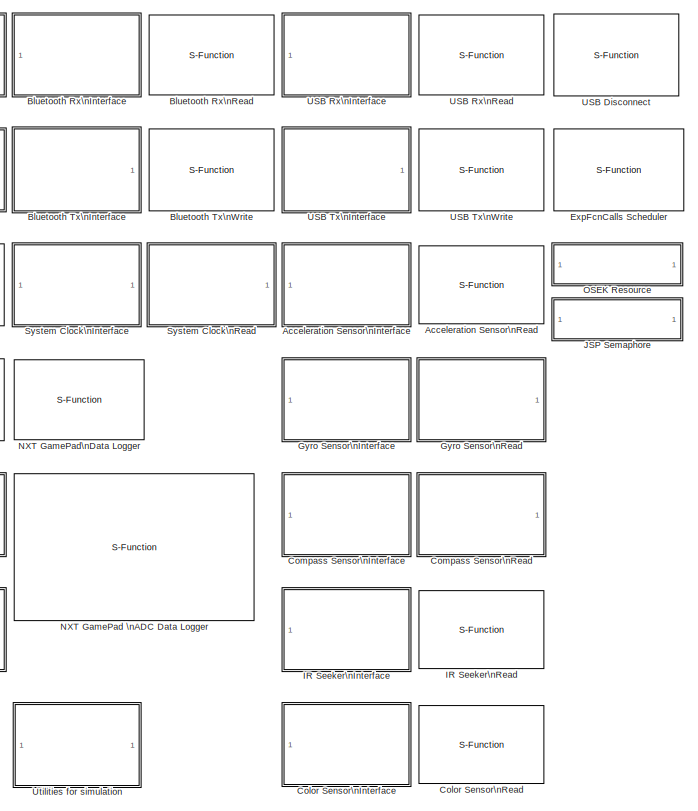
[diagram: root canvas - part 1/2, right side, full height]
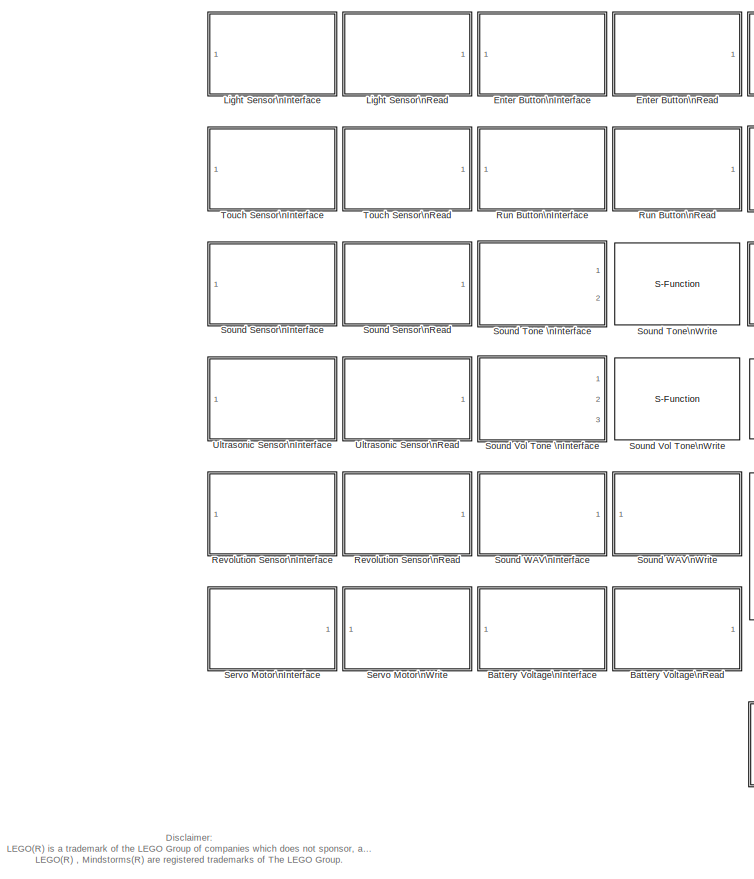
[diagram: root canvas - part 2/2, left side, full height]
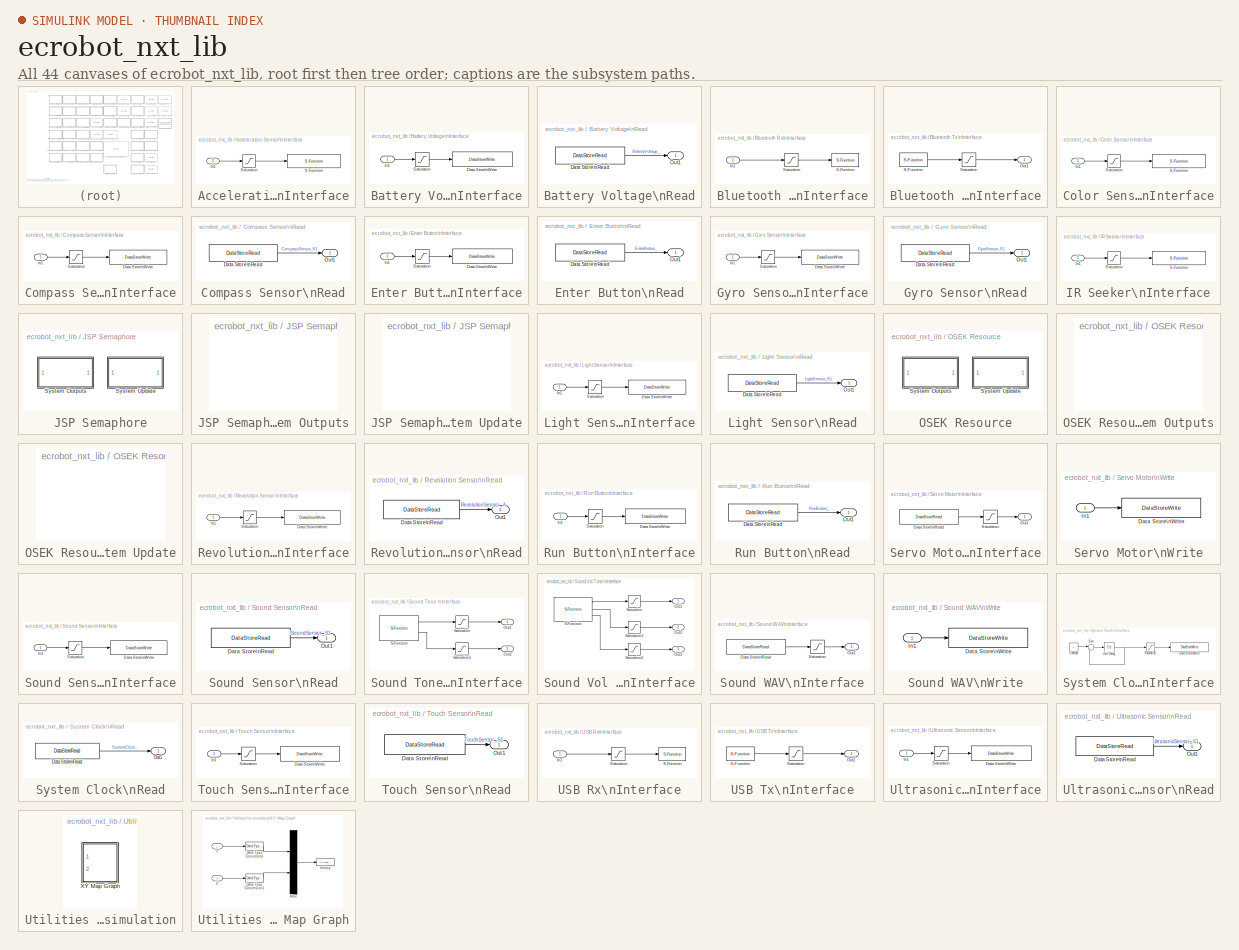
[diagram: thumbnail index - all 44 canvases of the model, root first then tree order]
MODEL ecrobot_nxt_lib
KIND library
BLOCK [SubSystem] Acceleration Sensor\nInterface
  FunctionWithSeparateData = off
  MaskDescription = HiTechnic Acceleration Sensor Interface for LEGO Mindstorms NXT. \nInput is a vectorized signal:\n Index1: X axis acceleration\n Index2: Y axis acceleration\n Index3: Z axis acceleration\nThis block should be allocated outside of a Subsystem for RTW code generation.
  MaskDisplay = image(imread('HiTechnicSensor.jpg'))\nport_label('input', 1, ['S' num2str(ip)])
  MaskEnableString = on
  MaskHideContents = off
  MaskIconFrame = on
  MaskIconOpaque = on
  MaskIconRotate = none
  MaskIconUnits = pixels
  MaskPromptString = Port:
  MaskSelfModifiable = on
  MaskStyleString = popup(S1|S2|S3|S4)
  MaskToolTipString = on
  MaskTunableValueString = on
  MaskType = Acceleration Sensor Interface
  MaskValueString = S1
  MaskVariables = ip=@1;
  MaskVisibilityString = on
  MinAlgLoopOccurrences = off
  Ports = [1]
  RTWSystemCode = Auto
  StopFcn = clearNXTSignalObjects();
  TreatAsAtomicUnit = on
BLOCK [Inport] Acceleration Sensor\nInterface/In1
  IconDisplay = Port number
BLOCK [S-Function] Acceleration Sensor\nInterface/S-Function
  FunctionName = sfun_acceleration_sensor
  MaskIconFrame = on
  MaskIconOpaque = on
  MaskIconRotate = none
  MaskIconUnits = autoscale
  MaskInitialization = bd_mode = InitDeviceSFunBlock(bdroot);
  Parameters = 0.001,0,ip,bd_mode
  Ports = [1]
BLOCK [Saturate] Acceleration Sensor\nInterface/Saturation
  LowerLimit = -512
  UpperLimit = 511
BLOCK [S-Function] Acceleration Sensor\nRead
  FunctionName = sfun_acceleration_sensor
  MaskDescription = Read HiTechnic Acceleration Sensor data.\nOutput is a vectorized signal:\n Index1: X axis acceleration\n Index2: Y axis acceleration\n Index3: Z axis acceleration
  MaskDisplay = image(imread('HiTechnicSensor.jpg'))\nport_label('output', 1, ['S' num2str(ip)])
  MaskEnableString = on
  MaskIconFrame = on
  MaskIconOpaque = on
  MaskIconRotate = none
  MaskIconUnits = autoscale
  MaskInitialization = bd_mode = InitDeviceSFunBlock(bdroot);
  MaskPromptString = Port:
  MaskStyleString = popup(S1|S2|S3|S4)
  MaskToolTipString = on
  MaskTunableValueString = on
  MaskType = Acceleration Sensor Read
  MaskValueString = S1
  MaskVariables = ip=@1;
  MaskVisibilityString = on
  Parameters = -1,1,ip,bd_mode
  Ports = [0, 1]
BLOCK [SubSystem] Battery Voltage\nInterface
  FunctionWithSeparateData = off
  InitFcn = InitInterfaceBlock(bdroot, gcb, 'BatteryVoltage', 'Write', '');
  MaskDescription = Battery Voltage Interface for LEGO Mindstorms NXT.\nThis block should be allocated outside of a Subsystem for RTW code generation.
  MaskDisplay = image(pic)\n
  MaskHideContents = off
  MaskIconFrame = on
  MaskIconOpaque = on
  MaskIconRotate = port
  MaskIconUnits = pixels
  MaskInitialization = [data, map]=imread('BATTERY_VOLTAGE.gif');\npic=ind2rgb(data,map);\n
  MaskSelfModifiable = on
  MaskType = Battery Voltage Interface
  MinAlgLoopOccurrences = off
  Ports = [1]
  RTWSystemCode = Auto
  StopFcn = clearNXTSignalObjects();
  TreatAsAtomicUnit = on
BLOCK [DataStoreWrite] Battery Voltage\nInterface/Data Store\nWrite
  DataStoreName = BatteryVoltage
  SampleTime = 0.001
BLOCK [Inport] Battery Voltage\nInterface/In1
  IconDisplay = Port number
BLOCK [Saturate] Battery Voltage\nInterface/Saturation
  LowerLimit = BatteryVoltage.Min
  SampleTime = 0.001
  UpperLimit = BatteryVoltage.Max
BLOCK [SubSystem] Battery Voltage\nRead
  FunctionWithSeparateData = off
  InitFcn = InitAccessorBlock(bdroot, gcb, 'BatteryVoltage', 'Read', '');
  MaskDescription = Read LEGO Mindstorms NXT Battery Voltage data.\n
  MaskDisplay = image(pic)\n
  MaskHideContents = off
  MaskIconFrame = on
  MaskIconOpaque = on
  MaskIconRotate = port
  MaskIconUnits = pixels
  MaskInitialization = [data, map]=imread('BATTERY_VOLTAGE.gif');\npic=ind2rgb(data,map);\n\nL = get_param([gcb '/Data Store Read'], 'LineHandles');\nname = get_param(L.Outport, 'Name');\nset_param(L.Outport, 'Name', 'BatteryVoltage_');\n
  MaskSelfModifiable = on
  MaskType = Battery Voltage Read
  MinAlgLoopOccurrences = off
  Ports = [0, 1]
  RTWSystemCode = Auto
BLOCK [DataStoreRead] Battery Voltage\nRead/Data Store\nRead
  DataStoreName = BatteryVoltage
  SampleTime = -1
BLOCK [Outport] Battery Voltage\nRead/Out1
  BusOutputAsStruct = off
  IconDisplay = Port number
BLOCK [SubSystem] Bluetooth Rx\nInterface
  AncestorBlock = ecrobot_nxt_lib/Bluetooth Rx\nInterface
  FunctionWithSeparateData = off
  MaskDescription = Bluetooth Receive Data Packet Interface for LEGO Mindstorms NXT.\nSize of Receive Data Packet is 32 and data type is uint8.\nThis block should be allocated outside of a Subsystem for RTW code generation and\nshould be used only single instance in a model.
  MaskDisplay = image(imread('BLUETOOTH.jpg'))\nport_label('input', 1, 'BTRx')
  MaskHideContents = off
  MaskIconFrame = on
  MaskIconOpaque = on
  MaskIconRotate = none
  MaskIconUnits = autoscale
  MaskType = Bluetooth Rx Interface
  MinAlgLoopOccurrences = off
  Ports = [1]
  RTWSystemCode = Auto
  TreatAsAtomicUnit = on
BLOCK [Inport] Bluetooth Rx\nInterface/In1
  IconDisplay = Port number
BLOCK [S-Function] Bluetooth Rx\nInterface/S-Function
  FunctionName = sfun_bt_rx
  MaskIconFrame = on
  MaskIconOpaque = on
  MaskIconRotate = none
  MaskIconUnits = autoscale
  MaskInitialization = bd_mode = InitDeviceSFunBlock(bdroot);
  Parameters = 0.001,0,bd_mode
  Ports = [1]
BLOCK [Saturate] Bluetooth Rx\nInterface/Saturation
  LowerLimit = 0
  UpperLimit = 255
BLOCK [S-Function] Bluetooth Rx\nRead
  FunctionName = sfun_bt_rx
  MaskDescription = Read LEGO Mindstorms Bluetooth data packet. Size of data packet is 32bytes.\nThis block should be used only single instance in a model.
  MaskDisplay = image(imread('BLUETOOTH.jpg'))\nport_label('output', 1, 'BTRx')\n
  MaskIconFrame = on
  MaskIconOpaque = on
  MaskIconRotate = none
  MaskIconUnits = autoscale
  MaskInitialization = bd_mode = InitDeviceSFunBlock(bdroot);
  MaskType = Bluetooth Rx Read
  Parameters = -1,1,bd_mode
  Ports = [0, 1]
BLOCK [SubSystem] Bluetooth Tx\nInterface
  AncestorBlock = ecrobot_nxt_lib/Bluetooth Tx\nInterface
  FunctionWithSeparateData = off
  MaskDescription = Bluetooth Send Data Packet Interface for LEGO Mindstorms NXT.\nSize of Send Data Packet is 32 and data type is uint8.\nThis block should be allocated outside of a Subsystem for RTW code generation and\nshould be used only single instance in a model.
  MaskDisplay = image(imread('BLUETOOTH.jpg'))\nport_label('output', 1, 'BTTx')
  MaskHideContents = off
  MaskIconFrame = on
  MaskIconOpaque = on
  MaskIconRotate = none
  MaskIconUnits = autoscale
  MaskType = Bluetooth Rx Interface
  MinAlgLoopOccurrences = off
  Ports = [0, 1]
  RTWSystemCode = Auto
  TreatAsAtomicUnit = on
BLOCK [Outport] Bluetooth Tx\nInterface/Out1
  BusOutputAsStruct = off
  IconDisplay = Port number
BLOCK [S-Function] Bluetooth Tx\nInterface/S-Function
  FunctionName = sfun_bt_tx
  MaskIconFrame = on
  MaskIconOpaque = on
  MaskIconRotate = none
  MaskIconUnits = autoscale
  MaskInitialization = bd_mode = InitDeviceSFunBlock(bdroot);
  Parameters = 0.001,0,bd_mode
  Ports = [0, 1]
BLOCK [Saturate] Bluetooth Tx\nInterface/Saturation
  LowerLimit = 0
  UpperLimit = 255
BLOCK [S-Function] Bluetooth Tx\nWrite
  FunctionName = sfun_bt_tx
  MaskDescription = Write LEGO Mindstorms Bluetooth data packet. Size of data packet is 32bytes.\nThis block should be used only single instance in a model.
  MaskDisplay = image(imread('BLUETOOTH.jpg'))\nport_label('input', 1, 'BTTx')
  MaskIconFrame = on
  MaskIconOpaque = on
  MaskIconRotate = none
  MaskIconUnits = autoscale
  MaskInitialization = bd_mode = InitDeviceSFunBlock(bdroot);
  MaskType = Bluetooth Tx Write
  Parameters = -1,1,bd_mode
  Ports = [1]
BLOCK [SubSystem] Color Sensor\nInterface
  AncestorBlock = ecrobot_nxt_lib/Infrared Sensor\nInterface
  FunctionWithSeparateData = off
  MaskDescription = HiTechnic Color Sensor Interface for LEGO Mindstorms NXT. \nInput is a vectorized signal:\n Index1: Red color raw data\n Index2: Green color raw data\n Index3: Blue color raw data\nThis block should be allocated outside of a Subsystem for RTW code generation.
  MaskDisplay = image(imread('ColorSensor.jpeg'))\nport_label('input', 1, ['S' num2str(ip)])
  MaskEnableString = on
  MaskHideContents = off
  MaskIconFrame = on
  MaskIconOpaque = on
  MaskIconRotate = none
  MaskIconUnits = pixels
  MaskPromptString = Port:
  MaskSelfModifiable = on
  MaskStyleString = popup(S1|S2|S3|S4)
  MaskToolTipString = on
  MaskTunableValueString = on
  MaskType = Color Sensor Interface
  MaskValueString = S1
  MaskVariables = ip=@1;
  MaskVisibilityString = on
  MinAlgLoopOccurrences = off
  Ports = [1]
  RTWSystemCode = Auto
  StopFcn = clearNXTSignalObjects();
  TreatAsAtomicUnit = on
BLOCK [Inport] Color Sensor\nInterface/In1
  IconDisplay = Port number
BLOCK [S-Function] Color Sensor\nInterface/S-Function
  FunctionName = sfun_color_sensor
  MaskIconFrame = on
  MaskIconOpaque = on
  MaskIconRotate = none
  MaskIconUnits = autoscale
  MaskInitialization = bd_mode = InitDeviceSFunBlock(bdroot);
  Parameters = 0.001,0,ip,bd_mode
  Ports = [1]
BLOCK [Saturate] Color Sensor\nInterface/Saturation
  LowerLimit = 0
  UpperLimit = 1023
BLOCK [S-Function] Color Sensor\nRead
  AncestorBlock = ecrobot_nxt_lib/Infrared Sensor\nRead
  FunctionName = sfun_color_sensor
  MaskDescription = Read HiTechnic Color Sensor data.\nOutput is a vectorized signal:\n Index1: Red color raw data\n Index2: Green color raw data\n Index3: Blue color raw data\n
  MaskDisplay = image(imread('ColorSensor.jpeg'))\nport_label('output', 1, ['S' num2str(ip)])
  MaskEnableString = on
  MaskIconFrame = on
  MaskIconOpaque = on
  MaskIconRotate = none
  MaskIconUnits = autoscale
  MaskInitialization = bd_mode = InitDeviceSFunBlock(bdroot);
  MaskPromptString = Port:
  MaskStyleString = popup(S1|S2|S3|S4)
  MaskToolTipString = on
  MaskTunableValueString = on
  MaskType = Color Sensor Read
  MaskValueString = S1
  MaskVariables = ip=@1;
  MaskVisibilityString = on
  Parameters = -1,1,ip,bd_mode
  Ports = [0, 1]
BLOCK [SubSystem] Compass Sensor\nInterface
  FunctionWithSeparateData = off
  InitFcn = InitInterfaceBlock(bdroot, gcb, 'CompassSensor', 'Write', get_param(gcb, 'ip'));
  MaskDescription = HiTechnic Compass Sensor Interface for LEGO Mindstorms NXT. \nThis block should be allocated outside of a Subsystem for RTW code generation.
  MaskDisplay = image(imread('HiTechnicSensor.jpg'))\nport_label('input', 1, ip)
  MaskEnableString = on
  MaskHideContents = off
  MaskIconFrame = on
  MaskIconOpaque = on
  MaskIconRotate = none
  MaskIconUnits = pixels
  MaskPromptString = Port:
  MaskSelfModifiable = on
  MaskStyleString = popup(S1|S2|S3|S4)
  MaskToolTipString = on
  MaskTunableValueString = off
  MaskType = Compass Sensor Interface
  MaskValueString = S1
  MaskVariables = ip=&1;
  MaskVisibilityString = on
  MinAlgLoopOccurrences = off
  Ports = [1]
  RTWSystemCode = Auto
  StopFcn = clearNXTSignalObjects();
  TreatAsAtomicUnit = on
BLOCK [DataStoreWrite] Compass Sensor\nInterface/Data Store\nWrite
  DataStoreName = CompassSensorS1
  SampleTime = 0.001
BLOCK [Inport] Compass Sensor\nInterface/In1
  IconDisplay = Port number
BLOCK [Saturate] Compass Sensor\nInterface/Saturation
  LowerLimit = CompassSensorS1.Min
  SampleTime = 0.001
  UpperLimit = CompassSensorS1.Max
BLOCK [SubSystem] Compass Sensor\nRead
  FunctionWithSeparateData = off
  InitFcn = InitAccessorBlock(bdroot, gcb, 'CompassSensor', 'Read', get_param(gcb, 'ip'));
  MaskDescription = Read HiTechnic Compass Sensor data.\nThis block should be used only single instance in a model.
  MaskDisplay = image(imread('HiTechnicSensor.jpg'))\nport_label('output', 1, ip)
  MaskEnableString = on
  MaskHideContents = off
  MaskIconFrame = on
  MaskIconOpaque = on
  MaskIconRotate = none
  MaskIconUnits = pixels
  MaskInitialization = L = get_param([gcb '/Data Store Read'], 'LineHandles');\nname = get_param(L.Outport, 'Name');\nset_param(L.Outport, 'Name', ['CompassSensor_' ip]);\n
  MaskPromptString = Port:
  MaskSelfModifiable = on
  MaskStyleString = popup(S1|S2|S3|S4)
  MaskToolTipString = on
  MaskTunableValueString = off
  MaskType = Compass Sensor Read
  MaskValueString = S1
  MaskVariables = ip=&1;
  MaskVisibilityString = on
  MinAlgLoopOccurrences = off
  Ports = [0, 1]
  RTWSystemCode = Auto
BLOCK [DataStoreRead] Compass Sensor\nRead/Data Store\nRead
  DataStoreName = CompassSensorS1
  SampleTime = -1
BLOCK [Outport] Compass Sensor\nRead/Out1
  BusOutputAsStruct = off
  IconDisplay = Port number
BLOCK [SubSystem] Enter Button\nInterface
  FunctionWithSeparateData = off
  InitFcn = InitInterfaceBlock(bdroot, gcb, 'EnterButton', 'Write', '');
  MaskDescription = Enter Button Interface for LEGO Mindstorms NXT.\nThis block should be allocated outside of a Subsystem for RTW code generation.
  MaskDisplay = image(imread('ENTER_BUTTON.jpg'))\n\n
  MaskHideContents = off
  MaskIconFrame = on
  MaskIconOpaque = on
  MaskIconRotate = port
  MaskIconUnits = pixels
  MaskSelfModifiable = on
  MaskType = Enter Button Interface
  MinAlgLoopOccurrences = off
  Ports = [1]
  RTWSystemCode = Auto
  StopFcn = clearNXTSignalObjects();
  TreatAsAtomicUnit = on
BLOCK [DataStoreWrite] Enter Button\nInterface/Data Store\nWrite
  DataStoreName = EnterButton
  SampleTime = 0.001
BLOCK [Inport] Enter Button\nInterface/In1
  IconDisplay = Port number
BLOCK [Saturate] Enter Button\nInterface/Saturation
  LowerLimit = EnterButton.Min
  SampleTime = 0.001
  UpperLimit = EnterButton.Max
BLOCK [SubSystem] Enter Button\nRead
  FunctionWithSeparateData = off
  InitFcn = InitAccessorBlock(bdroot, gcb, 'EnterButton', 'Read', '');
  MaskDescription = Read LEGO Mindstorms NXT Enter Button status.\n
  MaskDisplay = image(imread('ENTER_BUTTON.jpg'))\n
  MaskHideContents = off
  MaskIconFrame = on
  MaskIconOpaque = on
  MaskIconRotate = port
  MaskIconUnits = pixels
  MaskInitialization = L = get_param([gcb '/Data Store Read'], 'LineHandles');\nname = get_param(L.Outport, 'Name');\nset_param(L.Outport, 'Name', 'EnterButton_');\n
  MaskSelfModifiable = on
  MaskType = Enter Button Read
  MinAlgLoopOccurrences = off
  Ports = [0, 1]
  RTWSystemCode = Auto
BLOCK [DataStoreRead] Enter Button\nRead/Data Store\nRead
  DataStoreName = BatteryVoltage
  SampleTime = -1
BLOCK [Outport] Enter Button\nRead/Out1
  BusOutputAsStruct = off
  IconDisplay = Port number
BLOCK [S-Function] ExpFcnCalls Scheduler
  AncestorBlock = lib/ExpFcnCalls Scheduler
  FunctionName = sfun_expfcncallsscheduler
  InitFcn = set_fcncallname(gcb);
  MaskCallbackString = |||if strcmp(get_param(gcb, 'platform'), 'OSEK')\n    if strcmp(get_param(gcb, 'bd_mode'), 'Master')\n        set_param(gcb, 'MaskEnableString', 'on,on,off,on,on,on,off,on,on')\n    else\n        set_param(gcb, 'MaskEnableString', 'on,on,off,on,on,on,off,on,off')\n    end\nelseif  strcmp(get_param(gcb, 'platform'), 'JSP')\n    if strcmp(get_param(gcb, 'bd_mode'), 'Master')\n        set_param(gcb, ...<+708ch>
  MaskDescription = This block generates Function-Call events according to the specified initialization/periodical/event triggers in simulation.\nThis block also generate apprepreate C source to schedule RTW-EC generated C Functions in the real NXT.\n'Platform',  'Task stack size', and 'Resource' parameters affect only RTW-EC code generation.\n\n-Function-Call name: specify Function names \n-Function-Call source: spe...<+1136ch>
  MaskDisplay = disp(txt)
  MaskEnableString = on,on,off,on,on,on,off,on,off
  MaskIconFrame = on
  MaskIconOpaque = on
  MaskIconRotate = port
  MaskIconUnits = autoscale
  MaskInitialization = fcname = eval(['{' fcname '}']);\nif length(fcname) ~= length(fctrigger)\n    error('Function-Call name list and Function-Call source list are unmatch.');\nend\n\n% S-Function Parameters\nNUMBER_OF_FCNS = length(fcname);\nNUMBER_OF_TRIGS = length(find(fctrigger == -1));\nTIMING_TABLE = fctrigger;\n\n% diplay Function-Call configurations on the block\nif strcmp(platform, 'OSEK')\n    txt = '###   O...<+1374ch>
  MaskPromptString = Function-Call name(i.e. 'Fcn', 'Fcn1', 'Fcn2'):|Function-Call source(i.e. [0 -1 10]):|Sample time[sec]:|Platform:|Task stack size(i.e. [512 512 512]):|OSEK Resource(i.e. 'resA', 'resB'): |JSP Semaphore(i.e. 'semA', 'semB'):|Bluetooth device mode:|Bluetooth device address(i.e. '00', '16', '53', '04', 'F1', 'B3', '00'):
  MaskStyleString = edit,edit,edit,popup(OSEK|JSP),edit,edit,edit,popup(Master|Slave),edit
  MaskTabNameString = ,,,,,,,,
  MaskToolTipString = on,on,on,on,on,on,on,on,on
  MaskTunableValueString = off,on,off,off,on,off,off,off,off
  MaskType = Exported Function-Calls Scheduler
  MaskValueString = ' '|[0]|0.001|OSEK|[512]|||Slave|
  MaskVarAliasString = ,,,,,,,,
  MaskVariables = fcname=&1;fctrigger=@2;ts=@3;platform=&4;stacksize=@5;resources=&6;semaphores=&7;bd_mode=&8;bd_addr=&9;
  MaskVisibilityString = on,on,on,on,on,on,on,on,on
  Parameters = NUMBER_OF_FCNS, NUMBER_OF_TRIGS, TIMING_TABLE, ts
  Ports = [0, 1]
BLOCK [SubSystem] Gyro Sensor\nInterface
  AncestorBlock = ecrobot_nxt_lib/Light Sensor\nInterface
  FunctionWithSeparateData = off
  InitFcn = InitInterfaceBlock(bdroot, gcb, 'GyroSensor', 'Write', get_param(gcb, 'ip'));
  MaskDescription = HiTechnic Gyro Sensor Interface for LEGO Mindstorms NXT. \nThis block should be allocated outside of a Subsystem for RTW code generation.
  MaskDisplay = image(imread('HiTechnicSensor.jpg'))\nport_label('input', 1, ip)
  MaskEnableString = on
  MaskHideContents = off
  MaskIconFrame = on
  MaskIconOpaque = on
  MaskIconRotate = none
  MaskIconUnits = pixels
  MaskPromptString = Port:
  MaskSelfModifiable = on
  MaskStyleString = popup(S1|S2|S3|S4)
  MaskToolTipString = on
  MaskTunableValueString = off
  MaskType = Gyro Sensor Interface
  MaskValueString = S1
  MaskVariables = ip=&1;
  MaskVisibilityString = on
  MinAlgLoopOccurrences = off
  Ports = [1]
  RTWSystemCode = Auto
  StopFcn = clearNXTSignalObjects();
  TreatAsAtomicUnit = on
BLOCK [DataStoreWrite] Gyro Sensor\nInterface/Data Store\nWrite
  DataStoreName = GyroSensorS1
  SampleTime = 0.001
BLOCK [Inport] Gyro Sensor\nInterface/In1
  IconDisplay = Port number
BLOCK [Saturate] Gyro Sensor\nInterface/Saturation
  LowerLimit = GyroSensorS1.Min
  SampleTime = 0.001
  UpperLimit = GyroSensorS1.Max
BLOCK [SubSystem] Gyro Sensor\nRead
  AncestorBlock = ecrobot_nxt_lib/Light Sensor\nRead
  FunctionWithSeparateData = off
  InitFcn = InitAccessorBlock(bdroot, gcb, 'GyroSensor', 'Read', get_param(gcb, 'ip'));
  MaskDescription = Read HiTechnic Gyro Sensor data.\nThis block should be used only single instance in a model.
  MaskDisplay = image(imread('HiTechnicSensor.jpg'))\nport_label('output', 1, ip)
  MaskEnableString = on
  MaskHideContents = off
  MaskIconFrame = on
  MaskIconOpaque = on
  MaskIconRotate = none
  MaskIconUnits = pixels
  MaskInitialization = L = get_param([gcb '/Data Store Read'], 'LineHandles');\nname = get_param(L.Outport, 'Name');\nset_param(L.Outport, 'Name', ['GyroSensor_' ip]);\n
  MaskPromptString = Port:
  MaskSelfModifiable = on
  MaskStyleString = popup(S1|S2|S3|S4)
  MaskToolTipString = on
  MaskTunableValueString = off
  MaskType = Gyro Sensor Read
  MaskValueString = S1
  MaskVariables = ip=&1;
  MaskVisibilityString = on
  MinAlgLoopOccurrences = off
  Ports = [0, 1]
  RTWSystemCode = Auto
BLOCK [DataStoreRead] Gyro Sensor\nRead/Data Store\nRead
  DataStoreName = LightSensorS1
  SampleTime = -1
BLOCK [Outport] Gyro Sensor\nRead/Out1
  BusOutputAsStruct = off
  IconDisplay = Port number
BLOCK [SubSystem] IR Seeker\nInterface
  AncestorBlock = ecrobot_nxt_lib/Acceleration Sensor\nInterface
  FunctionWithSeparateData = off
  MaskDescription = HiTechnic IR Seeker Interface for LEGO Mindstorms NXT. \nInput is a vectorized signal:\n Index1: Direction\n Index2: Intensity1\n Index3: Intensity2\n Index4: Intensity3\n Index5: Intensity4\n Index6: Intensity5\nThis block should be allocated outside of a Subsystem for RTW code generation.
  MaskDisplay = image(imread('HiTechnicSensor.jpg'))\nport_label('input', 1, ['S' num2str(ip)])
  MaskEnableString = on
  MaskHideContents = off
  MaskIconFrame = on
  MaskIconOpaque = on
  MaskIconRotate = none
  MaskIconUnits = pixels
  MaskPromptString = Port:
  MaskSelfModifiable = on
  MaskStyleString = popup(S1|S2|S3|S4)
  MaskToolTipString = on
  MaskTunableValueString = on
  MaskType = IR Seeker Interface
  MaskValueString = S1
  MaskVariables = ip=@1;
  MaskVisibilityString = on
  MinAlgLoopOccurrences = off
  Ports = [1]
  RTWSystemCode = Auto
  StopFcn = clearNXTSignalObjects();
  TreatAsAtomicUnit = on
BLOCK [Inport] IR Seeker\nInterface/In1
  IconDisplay = Port number
BLOCK [S-Function] IR Seeker\nInterface/S-Function
  FunctionName = sfun_ir_seeker
  MaskIconFrame = on
  MaskIconOpaque = on
  MaskIconRotate = none
  MaskIconUnits = autoscale
  MaskInitialization = bd_mode = InitDeviceSFunBlock(bdroot);
  Parameters = 0.001,0,ip,bd_mode
  Ports = [1]
BLOCK [Saturate] IR Seeker\nInterface/Saturation
  LowerLimit = -128
  UpperLimit = 127
BLOCK [S-Function] IR Seeker\nRead
  AncestorBlock = ecrobot_nxt_lib/Acceleration Sensor\nRead
  FunctionName = sfun_ir_seeker
  MaskDescription = Read HiTechnic IR Seeker data.\nOutput is a vectorized signal:\n Index1: Direction\n Index2: Intensity1\n Index3: Intensity2\n Index4: Intensity3\n Index5: Intensity4\n Index6: Intensity5\n
  MaskDisplay = image(imread('HiTechnicSensor.jpg'))\nport_label('output', 1, ['S' num2str(ip)])
  MaskEnableString = on
  MaskIconFrame = on
  MaskIconOpaque = on
  MaskIconRotate = none
  MaskIconUnits = autoscale
  MaskInitialization = bd_mode = InitDeviceSFunBlock(bdroot);
  MaskPromptString = Port:
  MaskStyleString = popup(S1|S2|S3|S4)
  MaskToolTipString = on
  MaskTunableValueString = on
  MaskType = IR Seeker Read
  MaskValueString = S1
  MaskVariables = ip=@1;
  MaskVisibilityString = on
  Parameters = -1,1,ip,bd_mode
  Ports = [0, 1]
BLOCK [SubSystem] JSP Semaphore
  AncestorBlock = ecrobot_nxt_lib/OSEK Resource
  FunctionWithSeparateData = off
  MaskCallbackString = \n
  MaskDescription = One of JSP Semaphore which are specified in the Exported Function-Calls Scheduler block could be configured. Note that this block does not affect simulation, but code generation.
  MaskDisplay = disp(['Semaphore:\\n' semaphore])
  MaskEnableString = on
  MaskHideContents = off
  MaskIconFrame = on
  MaskIconOpaque = on
  MaskIconRotate = none
  MaskIconUnits = autoscale
  MaskInitialization = semaphore = get_param(gcb, 'semaphore');\n\n% check the specified semaphore is defined in the Exported Function-Calls Scheduler block\nblk = find_system(bdroot, 'regexp', 'on', ...\n    'BlockType', 'S-Function', ...\n    'MaskType', 'Exported Function-Calls Scheduler');\nif ~isempty(blk)\n    semaphores = get_param(blk, 'semaphores');\n    semaphores = eval([ '{' semaphores{1} '}']);\n    if ~ism...<+1098ch>
  MaskPromptString = Semaphore:
  MaskSelfModifiable = on
  MaskStyleString = edit
  MaskToolTipString = on
  MaskTunableValueString = off
  MaskType = JSP Semaphore block
  MaskVariables = semaphore=&1;
  MaskVisibilityString = on
  MinAlgLoopOccurrences = off
  Ports = []
  RTWSystemCode = Auto
BLOCK [SubSystem] JSP Semaphore/System Outputs
  CopyFcn = %cccopyfcn(gcb)
  FunctionWithSeparateData = off
  MaskDescription = Add code to a systems Outputs function
  MaskDisplay = disp('System\\nOutputs');
  MaskEnableString = off
  MaskHelp = This block contains text fields to insert custom user code sections at the declaration, execution and exit sections of the systems outputs function.  By placing this block inside a subsytem, the custom user code will appear in that subsystems function.
  MaskHideContents = off
  MaskIconFrame = on
  MaskIconOpaque = on
  MaskIconRotate = none
  MaskIconUnits = autoscale
  MaskPromptString = Mask Parameter 1:
  MaskStyleString = edit
  MaskToolTipString = on
  MaskTunableValueString = on
  MaskType = System Outputs
  MaskValueString = 0
  MaskVariables = ShowInLibBrowser=@1;
  MaskVisibilityString = off
  MinAlgLoopOccurrences = off
  OpenFcn = %ccopenfcn('System Outputs Function')
  Ports = []
  RTWSystemCode = Auto
BLOCK [SubSystem] JSP Semaphore/System Update
  CopyFcn = %cccopyfcn(gcb)
  FunctionWithSeparateData = off
  MaskDescription = Add code to a systems Update function
  MaskDisplay = disp('System\\nUpdate');
  MaskEnableString = off
  MaskHelp = This block contains text fields to insert custom user code sections at the declaration, execution and exit sections of the systems update function.  By placing this block inside a subsytem, the custom user code will appear in that subsystems function.
  MaskHideContents = off
  MaskIconFrame = on
  MaskIconOpaque = on
  MaskIconRotate = none
  MaskIconUnits = autoscale
  MaskPromptString = Mask Parameter 1:
  MaskStyleString = edit
  MaskToolTipString = on
  MaskTunableValueString = on
  MaskType = System Update
  MaskValueString = 0
  MaskVariables = ShowInLibBrowser=@1;
  MaskVisibilityString = off
  MinAlgLoopOccurrences = off
  OpenFcn = %ccopenfcn('System Update Function')
  Ports = []
  RTWSystemCode = Auto
BLOCK [SubSystem] Light Sensor\nInterface
  FunctionWithSeparateData = off
  InitFcn = InitInterfaceBlock(bdroot, gcb, 'LightSensor', 'Write', get_param(gcb, 'ip'));
  MaskDescription = Light Sensor Interface for LEGO Mindstorms NXT. \nThis block should be allocated outside of a Subsystem for RTW code generation.
  MaskDisplay = image(pic)\nport_label('input', 1, ip)
  MaskEnableString = on
  MaskHideContents = off
  MaskIconFrame = on
  MaskIconOpaque = on
  MaskIconRotate = none
  MaskIconUnits = pixels
  MaskInitialization = [data, map]=imread('LIGHT_SENSOR.gif');\npic=ind2rgb(data,map);\n\n
  MaskPromptString = Port:
  MaskSelfModifiable = on
  MaskStyleString = popup(S1|S2|S3|S4)
  MaskToolTipString = on
  MaskTunableValueString = off
  MaskType = Light Sensor Interface
  MaskValueString = S1
  MaskVariables = ip=&1;
  MaskVisibilityString = on
  MinAlgLoopOccurrences = off
  Ports = [1]
  RTWSystemCode = Auto
  StopFcn = clearNXTSignalObjects();
  TreatAsAtomicUnit = on
BLOCK [DataStoreWrite] Light Sensor\nInterface/Data Store\nWrite
  DataStoreName = LightSensorS1
  SampleTime = 0.001
BLOCK [Inport] Light Sensor\nInterface/In1
  IconDisplay = Port number
BLOCK [Saturate] Light Sensor\nInterface/Saturation
  LowerLimit = LightSensorS1.Min
  SampleTime = 0.001
  UpperLimit = LightSensorS1.Max
BLOCK [SubSystem] Light Sensor\nRead
  FunctionWithSeparateData = off
  InitFcn = InitAccessorBlock(bdroot, gcb, 'LightSensor', 'Read', get_param(gcb, 'ip'));
  MaskDescription = Read LEGO Mindstorms NXT Light Sensor data.
  MaskDisplay = image(pic)\nport_label('output', 1, ip)
  MaskEnableString = on
  MaskHideContents = off
  MaskIconFrame = on
  MaskIconOpaque = on
  MaskIconRotate = none
  MaskIconUnits = pixels
  MaskInitialization = [data, map]=imread('LIGHT_SENSOR.gif');\npic=ind2rgb(data,map);\n\nL = get_param([gcb '/Data Store Read'], 'LineHandles');\nname = get_param(L.Outport, 'Name');\nset_param(L.Outport, 'Name', ['LightSensor_' ip]);\n
  MaskPromptString = Port:
  MaskSelfModifiable = on
  MaskStyleString = popup(S1|S2|S3|S4)
  MaskToolTipString = on
  MaskTunableValueString = off
  MaskType = Light Sensor Read
  MaskValueString = S1
  MaskVariables = ip=&1;
  MaskVisibilityString = on
  MinAlgLoopOccurrences = off
  Ports = [0, 1]
  RTWSystemCode = Auto
BLOCK [DataStoreRead] Light Sensor\nRead/Data Store\nRead
  DataStoreName = LightSensorS1
  SampleTime = -1
BLOCK [Outport] Light Sensor\nRead/Out1
  BusOutputAsStruct = off
  IconDisplay = Port number
BLOCK [S-Function] NXT GamePad \nADC Data Logger
  FunctionName = sfun_gamepad_datalogger
  MaskDescription = Send NXT internal status to NXT GamePad Data Logger.\nNXT GamePad Data Logger has a total 32 bytes data packet.\n\ndata packet 0-3bytes: system tick in msec, data type U32 \ndata packet 4bytes: Data1, data type S8 \ndata packet 5bytes: Data2, data type S8 \ndata packet 6-7bytes: battery voltage in mV, data type U16\ndata packet 8-11bytes: Servo Motor revolution at Port A, data type S32 \ndata pack...<+671ch>
  MaskDisplay = image(imread('AnalogGamePad.jpg'))\nport_label('input', 1, 'Data1')\nport_label('input', 2, 'Data2')\nport_label('input', 3, 'ADC1')\nport_label('input', 4, 'ADC2')\nport_label('input', 5, 'ADC3')\nport_label('input', 6, 'ADC4')\n\n    \n
  MaskIconFrame = on
  MaskIconOpaque = on
  MaskIconRotate = none
  MaskIconUnits = autoscale
  MaskType = NXT GamePad ADC Data Logger
  Parameters = 2
  Ports = [6]
BLOCK [S-Function] NXT GamePad\nData Logger
  FunctionName = sfun_gamepad_datalogger
  MaskDescription = Send NXT internal status to NXT GamePad Data Logger.\nNXT GamePad Data Logger has a total 32 bytes data packet.\n\nNORMAL MODE:\ndata packet 0-3bytes: system tick in msec, data type U32 \ndata packet 4bytes: Data1, data type S8 \ndata packet 5bytes: Data2, data type S8 \ndata packet 6-7bytes: battery voltage in mV, data type U16\ndata packet 8-11bytes: Servo Motor revolution at Port A, data type S...<+764ch>
  MaskDisplay = image(imread('AnalogGamePad.jpg'))\nport_label('input', 1, 'Data1')\nport_label('input', 2, 'Data2')\n\n    \n
  MaskIconFrame = on
  MaskIconOpaque = on
  MaskIconRotate = none
  MaskIconUnits = autoscale
  MaskType = NXT GamePad Data Logger
  Parameters = 1
  Ports = [2]
BLOCK [SubSystem] OSEK Resource
  AncestorBlock = lib/OSEK Resource
  FunctionWithSeparateData = off
  MaskCallbackString = \n
  MaskDescription = One of OSEK Resources which are specified in the Exported Function-Calls Scheduler block could be configured. Note that this block does not affect simulation, but code generation.
  MaskDisplay = disp(['Resource:\\n' resource])
  MaskEnableString = on
  MaskHideContents = off
  MaskIconFrame = on
  MaskIconOpaque = on
  MaskIconRotate = none
  MaskIconUnits = autoscale
  MaskInitialization = resource = get_param(gcb, 'resource');\n\n% check the specified resource is defined in the Exported Function-Calls Scheduler block\nblk = find_system(bdroot, 'regexp', 'on', ...\n    'BlockType', 'S-Function', ...\n    'MaskType', 'Exported Function-Calls Scheduler');\nif ~isempty(blk)\n    resources = get_param(blk, 'resources');\n    resources = eval([ '{' resources{1} '}']);\n    if ~ismember(r...<+1157ch>
  MaskPromptString = Resource:
  MaskSelfModifiable = on
  MaskStyleString = edit
  MaskToolTipString = on
  MaskTunableValueString = off
  MaskType = OSEK Resource block
  MaskVariables = resource=&1;
  MaskVisibilityString = on
  MinAlgLoopOccurrences = off
  Ports = []
  RTWSystemCode = Auto
BLOCK [SubSystem] OSEK Resource/System Outputs
  CopyFcn = %cccopyfcn(gcb)
  FunctionWithSeparateData = off
  MaskDescription = Add code to a systems Outputs function
  MaskDisplay = disp('System\\nOutputs');
  MaskEnableString = off
  MaskHelp = This block contains text fields to insert custom user code sections at the declaration, execution and exit sections of the systems outputs function.  By placing this block inside a subsytem, the custom user code will appear in that subsystems function.
  MaskHideContents = off
  MaskIconFrame = on
  MaskIconOpaque = on
  MaskIconRotate = none
  MaskIconUnits = autoscale
  MaskPromptString = Mask Parameter 1:
  MaskStyleString = edit
  MaskToolTipString = on
  MaskTunableValueString = on
  MaskType = System Outputs
  MaskValueString = 0
  MaskVariables = ShowInLibBrowser=@1;
  MaskVisibilityString = off
  MinAlgLoopOccurrences = off
  OpenFcn = %ccopenfcn('System Outputs Function')
  Ports = []
  RTWSystemCode = Auto
BLOCK [SubSystem] OSEK Resource/System Update
  CopyFcn = %cccopyfcn(gcb)
  FunctionWithSeparateData = off
  MaskDescription = Add code to a systems Update function
  MaskDisplay = disp('System\\nUpdate');
  MaskEnableString = off
  MaskHelp = This block contains text fields to insert custom user code sections at the declaration, execution and exit sections of the systems update function.  By placing this block inside a subsytem, the custom user code will appear in that subsystems function.
  MaskHideContents = off
  MaskIconFrame = on
  MaskIconOpaque = on
  MaskIconRotate = none
  MaskIconUnits = autoscale
  MaskPromptString = Mask Parameter 1:
  MaskStyleString = edit
  MaskToolTipString = on
  MaskTunableValueString = on
  MaskType = System Update
  MaskValueString = 0
  MaskVariables = ShowInLibBrowser=@1;
  MaskVisibilityString = off
  MinAlgLoopOccurrences = off
  OpenFcn = %ccopenfcn('System Update Function')
  Ports = []
  RTWSystemCode = Auto
BLOCK [SubSystem] Revolution Sensor\nInterface
  FunctionWithSeparateData = off
  InitFcn = InitInterfaceBlock(bdroot, gcb, 'RevolutionSensor', 'Write', get_param(gcb, 'ip'));
  MaskDescription = Motor Revolution Sensor Interface for LEGO Mindstorms NXT.\nThis block should be allocated outside of a Subsystem for RTW code generation.
  MaskDisplay = image(pic)\nport_label('input', 1, ip)
  MaskEnableString = on
  MaskHideContents = off
  MaskIconFrame = on
  MaskIconOpaque = off
  MaskIconRotate = port
  MaskIconUnits = pixels
  MaskInitialization = [data, map]=imread('ROTATION_SENSOR.gif');\npic=ind2rgb(data,map);\n\n
  MaskPromptString = Port:
  MaskSelfModifiable = on
  MaskStyleString = popup(A|B|C)
  MaskToolTipString = on
  MaskTunableValueString = off
  MaskType = Revolution Sensor Interface
  MaskValueString = A
  MaskVariables = ip=&1;
  MaskVisibilityString = on
  MinAlgLoopOccurrences = off
  Ports = [1]
  RTWSystemCode = Auto
  StopFcn = clearNXTSignalObjects();
  TreatAsAtomicUnit = on
BLOCK [DataStoreWrite] Revolution Sensor\nInterface/Data Store\nWrite
  DataStoreName = RevolutionSensorA
  SampleTime = 0.001
BLOCK [Inport] Revolution Sensor\nInterface/In1
  IconDisplay = Port number
BLOCK [Saturate] Revolution Sensor\nInterface/Saturation
  LowerLimit = RevolutionSensorA.Min
  SampleTime = 0.001
  UpperLimit = RevolutionSensorA.Max
BLOCK [SubSystem] Revolution Sensor\nRead
  FunctionWithSeparateData = off
  InitFcn = InitAccessorBlock(bdroot, gcb,'RevolutionSensor', 'Read', get_param(gcb, 'ip'));\n
  MaskDescription = Read LEGO Mindstorms NXT Motor Revolution Sensor data.
  MaskDisplay = image(pic)\nport_label('output', 1, ip)
  MaskEnableString = on
  MaskHideContents = off
  MaskIconFrame = on
  MaskIconOpaque = off
  MaskIconRotate = port
  MaskIconUnits = pixels
  MaskInitialization = [data, map]=imread('ROTATION_SENSOR.gif');\npic=ind2rgb(data,map);\n\nL = get_param([gcb '/Data Store Read'], 'LineHandles');\nname = get_param(L.Outport, 'Name');\nset_param(L.Outport, 'Name', ['RevolutionSensor_' ip]);\n
  MaskPromptString = Port:
  MaskSelfModifiable = on
  MaskStyleString = popup(A|B|C)
  MaskToolTipString = on
  MaskTunableValueString = off
  MaskType = Revolution Sensor Read
  MaskValueString = A
  MaskVariables = ip=&1;
  MaskVisibilityString = on
  MinAlgLoopOccurrences = off
  Ports = [0, 1]
  RTWSystemCode = Auto
BLOCK [DataStoreRead] Revolution Sensor\nRead/Data Store\nRead
  DataStoreName = RevolutionSensorA
  SampleTime = -1
BLOCK [Outport] Revolution Sensor\nRead/Out1
  BusOutputAsStruct = off
  IconDisplay = Port number
BLOCK [SubSystem] Run Button\nInterface
  FunctionWithSeparateData = off
  InitFcn = InitInterfaceBlock(bdroot, gcb, 'RunButton', 'Write', '');
  MaskDescription = Run Button Interface for LEGO Mindstorms NXT.\nThis block should be allocated outside of a Subsystem for RTW code generation.
  MaskDisplay = image(imread('RUN_BUTTON.jpg'))\n\n
  MaskHideContents = off
  MaskIconFrame = on
  MaskIconOpaque = on
  MaskIconRotate = port
  MaskIconUnits = pixels
  MaskSelfModifiable = on
  MaskType = Run Button Interface
  MinAlgLoopOccurrences = off
  Ports = [1]
  RTWSystemCode = Auto
  StopFcn = clearNXTSignalObjects();
  TreatAsAtomicUnit = on
BLOCK [DataStoreWrite] Run Button\nInterface/Data Store\nWrite
  DataStoreName = RunButton
  SampleTime = 0.001
BLOCK [Inport] Run Button\nInterface/In1
  IconDisplay = Port number
BLOCK [Saturate] Run Button\nInterface/Saturation
  LowerLimit = RunButton.Min
  SampleTime = 0.001
  UpperLimit = RunButton.Max
BLOCK [SubSystem] Run Button\nRead
  FunctionWithSeparateData = off
  InitFcn = InitAccessorBlock(bdroot, gcb, 'RunButton', 'Read', '');
  MaskDescription = Read LEGO Mindstorms NXT Run Button status.\n
  MaskDisplay = image(imread('RUN_BUTTON.jpg'))\n
  MaskHideContents = off
  MaskIconFrame = on
  MaskIconOpaque = on
  MaskIconRotate = port
  MaskIconUnits = pixels
  MaskInitialization = L = get_param([gcb '/Data Store Read'], 'LineHandles');\nname = get_param(L.Outport, 'Name');\nset_param(L.Outport, 'Name', 'RunButton_');\n
  MaskSelfModifiable = on
  MaskType = Run Button Read
  MinAlgLoopOccurrences = off
  Ports = [0, 1]
  RTWSystemCode = Auto
BLOCK [DataStoreRead] Run Button\nRead/Data Store\nRead
  DataStoreName = BatteryVoltage
  SampleTime = -1
BLOCK [Outport] Run Button\nRead/Out1
  BusOutputAsStruct = off
  IconDisplay = Port number
BLOCK [SubSystem] Servo Motor\nInterface
  FunctionWithSeparateData = off
  InitFcn = InitInterfaceBlock(bdroot, gcb, 'ServoMotor', 'Read', get_param(gcb, 'ip'), get_param(gcb, 'mode'));
  MaskCallbackString = |
  MaskDescription = Servo Motor Interface for LEGO Mindstorms NXT.\nThis block should be allocated outside of a Subsystem for RTW code generation.
  MaskDisplay = image(pic)\nport_label('output', 1, ip)
  MaskEnableString = on,on
  MaskHideContents = off
  MaskIconFrame = on
  MaskIconOpaque = on
  MaskIconRotate = none
  MaskIconUnits = pixels
  MaskInitialization = [data, map]=imread('SERVO_MOTOR.gif');\npic=ind2rgb(data,map);\n
  MaskPromptString = Port:|Mode:
  MaskSelfModifiable = on
  MaskStyleString = popup(A|B|C),popup(Brake|Float)
  MaskTabNameString = ,
  MaskToolTipString = on,on
  MaskTunableValueString = off,off
  MaskType = Servo Motor Interface
  MaskValueString = A|Brake
  MaskVarAliasString = ,
  MaskVariables = ip=&1;mode=&2;
  MaskVisibilityString = on,on
  MinAlgLoopOccurrences = off
  Ports = [0, 1]
  RTWSystemCode = Auto
  StopFcn = clearNXTSignalObjects();
  TreatAsAtomicUnit = on
BLOCK [DataStoreRead] Servo Motor\nInterface/Data Store\nRead
  DataStoreName = ServoMotorA
  SampleTime = 0.001
BLOCK [Outport] Servo Motor\nInterface/Out1
  BusOutputAsStruct = off
  IconDisplay = Port number
BLOCK [Saturate] Servo Motor\nInterface/Saturation
  LowerLimit = ServoMotorA.Min
  SampleTime = 0.001
  UpperLimit = ServoMotorA.Max
BLOCK [SubSystem] Servo Motor\nWrite
  FunctionWithSeparateData = off
  InitFcn = InitAccessorBlock(bdroot, gcb, 'ServoMotor', 'Write', get_param(gcb, 'ip'));
  MaskDescription = Write LEGO Mindstorms NXT Servo Motor data.
  MaskDisplay = image(pic)\nport_label('input', 1, ip)
  MaskEnableString = on
  MaskHideContents = off
  MaskIconFrame = on
  MaskIconOpaque = on
  MaskIconRotate = none
  MaskIconUnits = pixels
  MaskInitialization = [data, map]=imread('SERVO_MOTOR.gif');\npic=ind2rgb(data,map);\n
  MaskPromptString = Port:
  MaskSelfModifiable = on
  MaskStyleString = popup(A|B|C)
  MaskToolTipString = on
  MaskTunableValueString = off
  MaskType = Servo Motor Write
  MaskValueString = A
  MaskVariables = ip=&1;
  MaskVisibilityString = on
  MinAlgLoopOccurrences = off
  Ports = [1]
  RTWSystemCode = Auto
BLOCK [DataStoreWrite] Servo Motor\nWrite/Data Store\nWrite
  DataStoreName = ServoMotorA
  SampleTime = -1
BLOCK [Inport] Servo Motor\nWrite/In1
  IconDisplay = Port number
BLOCK [SubSystem] Sound Sensor\nInterface
  FunctionWithSeparateData = off
  InitFcn = InitInterfaceBlock(bdroot, gcb, 'SoundSensor', 'Write', get_param(gcb, 'ip'));
  MaskDescription = Sound Sensor Interface for LEGO Mindstorms NXT.\nThis block should be allocated outside of a Subsystem for RTW code generation.
  MaskDisplay = image(pic)\nport_label('input', 1, ip)
  MaskEnableString = on
  MaskHideContents = off
  MaskIconFrame = on
  MaskIconOpaque = on
  MaskIconRotate = port
  MaskIconUnits = pixels
  MaskInitialization = [data, map]=imread('SOUND_SENSOR.gif');\npic=ind2rgb(data,map);\n\n
  MaskPromptString = Port:
  MaskSelfModifiable = on
  MaskStyleString = popup(S1|S2|S3|S4)
  MaskToolTipString = on
  MaskTunableValueString = off
  MaskType = Sound Sensor Interface
  MaskValueString = S1
  MaskVariables = ip=&1;
  MaskVisibilityString = on
  MinAlgLoopOccurrences = off
  Ports = [1]
  RTWSystemCode = Auto
  StopFcn = clearNXTSignalObjects();
  TreatAsAtomicUnit = on
BLOCK [DataStoreWrite] Sound Sensor\nInterface/Data Store\nWrite
  DataStoreName = SoundSensorS1
  SampleTime = 0.001
BLOCK [Inport] Sound Sensor\nInterface/In1
  IconDisplay = Port number
BLOCK [Saturate] Sound Sensor\nInterface/Saturation
  LowerLimit = SoundSensorS1.Min
  SampleTime = 0.001
  UpperLimit = SoundSensorS1.Max
BLOCK [SubSystem] Sound Sensor\nRead
  FunctionWithSeparateData = off
  InitFcn = InitAccessorBlock(bdroot, gcb, 'SoundSensor', 'Read', get_param(gcb, 'ip'));
  MaskDescription = Read LEGO Mindstorms NXT Sound Sensor data.
  MaskDisplay = image(pic)\nport_label('output', 1, ip)\n\n
  MaskEnableString = on
  MaskHideContents = off
  MaskIconFrame = on
  MaskIconOpaque = on
  MaskIconRotate = port
  MaskIconUnits = pixels
  MaskInitialization = [data, map]=imread('SOUND_SENSOR.gif');\npic=ind2rgb(data,map);\n\nL = get_param([gcb '/Data Store Read'], 'LineHandles');\nname = get_param(L.Outport, 'Name');\nset_param(L.Outport, 'Name', ['SoundSensor_' ip]);
  MaskPromptString = Port:
  MaskSelfModifiable = on
  MaskStyleString = popup(S1|S2|S3|S4)
  MaskToolTipString = on
  MaskTunableValueString = off
  MaskType = Sound Sensor Read
  MaskValueString = S1
  MaskVariables = ip=&1;
  MaskVisibilityString = on
  MinAlgLoopOccurrences = off
  Ports = [0, 1]
  RTWSystemCode = Auto
BLOCK [DataStoreRead] Sound Sensor\nRead/Data Store\nRead
  DataStoreName = SoundSensorS1
  SampleTime = -1
BLOCK [Outport] Sound Sensor\nRead/Out1
  BusOutputAsStruct = off
  IconDisplay = Port number
BLOCK [SubSystem] Sound Tone \nInterface
  FunctionWithSeparateData = off
  MaskDescription = Sound Tone Interface for LEGO Mindstorms NXT.\nThis block should be allocated outside of a Subsystem for RTW code generation and\nshould be used only single instance in a model.\n\nFreq: Frequency of a tone sound in Hertz (Hz)\nDur: Duration of a tone sound in centiseconds. Value is truncated at 256 centiseconds
  MaskDisplay = image(imread('BEEP.jpg'))\nport_label('output', 1, 'Freq')\nport_label('output', 2, 'Dur')
  MaskHideContents = off
  MaskIconFrame = on
  MaskIconOpaque = on
  MaskIconRotate = none
  MaskIconUnits = autoscale
  MaskType = Sound Tone Interface
  MinAlgLoopOccurrences = off
  Ports = [0, 2]
  RTWSystemCode = Auto
  TreatAsAtomicUnit = on
BLOCK [Outport] Sound Tone \nInterface/Out1
  BusOutputAsStruct = off
  IconDisplay = Port number
BLOCK [Outport] Sound Tone \nInterface/Out2
  BusOutputAsStruct = off
  IconDisplay = Port number
  Port = 2
BLOCK [S-Function] Sound Tone \nInterface/S-Function
  FunctionName = sfun_soundtone
  MaskIconFrame = on
  MaskIconOpaque = on
  MaskIconRotate = none
  MaskIconUnits = autoscale
  MaskInitialization = bd_mode = InitDeviceSFunBlock(bdroot);
  Parameters = 0.001,0,bd_mode
  Ports = [0, 2]
BLOCK [Saturate] Sound Tone \nInterface/Saturation
  LowerLimit = 31
  UpperLimit = 14080
BLOCK [Saturate] Sound Tone \nInterface/Saturation1
  LowerLimit = 10
  UpperLimit = 2560
BLOCK [S-Function] Sound Tone\nWrite
  FunctionName = sfun_soundtone
  MaskDescription = Write LEGO Mindstorms NXT Sound Tone data.\n\nFreq: Frequency of a tone sound in Hertz (Hz)\nDur: Duration of a tone sound, in centiseconds. Value is truncated at 256 centiseconds
  MaskDisplay = image(imread('BEEP.jpg'))\nport_label('input', 1, 'Freq')\nport_label('input', 2, 'Dur')
  MaskIconFrame = on
  MaskIconOpaque = on
  MaskIconRotate = none
  MaskIconUnits = autoscale
  MaskInitialization = bd_mode = InitDeviceSFunBlock(bdroot);
  MaskType = Sound Tone Write
  Parameters = -1,1,bd_mode
  Ports = [2]
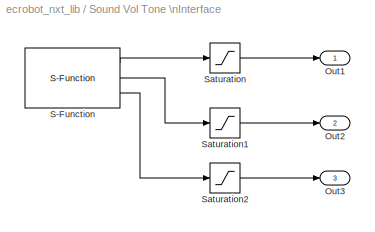
BLOCK [SubSystem] Sound Vol Tone \nInterface
  AncestorBlock = ecrobot_nxt_lib/Sound Tone \nInterface
  FunctionWithSeparateData = off
  MaskDescription = Sound Vol Tone Interface for LEGO Mindstorms NXT.\nThis block should be allocated outside of a Subsystem for RTW code generation and\nshould be used only single instance in a model.\n\nFreq: Frequency of a tone sound in Hertz (Hz)\nDur: Duration of a tone sound, in centiseconds. Value is truncated at 256 centiseconds\nVol: Volume of a tone sound. 0[%] to 100[%]. 0[%] means mute.
  MaskDisplay = image(imread('BEEP.jpg'))\nport_label('output', 1, 'Freq')\nport_label('output', 2, 'Dur')\nport_label('output', 3, 'Vol')
  MaskHideContents = off
  MaskIconFrame = on
  MaskIconOpaque = on
  MaskIconRotate = none
  MaskIconUnits = autoscale
  MaskType = Sound Vol Tone Interface
  MinAlgLoopOccurrences = off
  Ports = [0, 3]
  RTWSystemCode = Auto
  TreatAsAtomicUnit = on
BLOCK [Outport] Sound Vol Tone \nInterface/Out1
  BusOutputAsStruct = off
  IconDisplay = Port number
BLOCK [Outport] Sound Vol Tone \nInterface/Out2
  BusOutputAsStruct = off
  IconDisplay = Port number
  Port = 2
BLOCK [Outport] Sound Vol Tone \nInterface/Out3
  BusOutputAsStruct = off
  IconDisplay = Port number
  Port = 3
BLOCK [S-Function] Sound Vol Tone \nInterface/S-Function
  FunctionName = sfun_soundvoltone
  MaskIconFrame = on
  MaskIconOpaque = on
  MaskIconRotate = none
  MaskIconUnits = autoscale
  MaskInitialization = bd_mode = InitDeviceSFunBlock(bdroot);
  Parameters = 0.001,0,bd_mode
  Ports = [0, 3]
BLOCK [Saturate] Sound Vol Tone \nInterface/Saturation
  LowerLimit = 31
  UpperLimit = 14080
BLOCK [Saturate] Sound Vol Tone \nInterface/Saturation1
  LowerLimit = 10
  UpperLimit = 2560
BLOCK [Saturate] Sound Vol Tone \nInterface/Saturation2
  LowerLimit = 0
  UpperLimit = 100
BLOCK [S-Function] Sound Vol Tone\nWrite
  AncestorBlock = ecrobot_nxt_lib/Sound Tone\nWrite
  FunctionName = sfun_soundvoltone
  MaskDescription = Write LEGO Mindstorms NXT Sound Tone data with volume.\n\nFreq: Frequency of a tone sound in Hertz (Hz)\nDur: Duration of a tone sound, in centiseconds. Value is truncated at 256 centiseconds\nVol: Volume of a tone sound. 0[%] to 100[%]. 0[%] means mute.
  MaskDisplay = image(imread('BEEP.jpg'))\nport_label('input', 1, 'Freq')\nport_label('input', 2, 'Dur')\nport_label('input', 3, 'Vol')
  MaskIconFrame = on
  MaskIconOpaque = on
  MaskIconRotate = none
  MaskIconUnits = autoscale
  MaskInitialization = bd_mode = InitDeviceSFunBlock(bdroot);
  MaskType = Sound Vol Tone Write
  Parameters = -1,1,bd_mode
  Ports = [3]
BLOCK [SubSystem] Sound WAV\nInterface
  AncestorBlock = ecrobot_nxt_lib/Servo Motor\nInterface
  FunctionWithSeparateData = off
  InitFcn = InitInterfaceBlock(bdroot, gcb, 'SoundWAV', 'Read', eval(get_param(gcb, 'wav')));
  MaskDescription = Sound WAV Interface for LEGO Mindstorms NXT.\nThis block should be allocated outside of a Subsystem for RTW code generation.\nSupport for only 2k - 22 kHz 8bit monoral WAV file.\n\nVol: Volume of a WAV sound. 0[%] to 100[%]. 0[%] means mute
  MaskDisplay = disp(wavfile);\nport_label('output', 1, 'Vol')\n
  MaskEnableString = on
  MaskHideContents = off
  MaskIconFrame = on
  MaskIconOpaque = on
  MaskIconRotate = none
  MaskIconUnits = pixels
  MaskInitialization = wavfile = [wav '.wav'];\nif isempty(which(wavfile));\n    error ([wav ' is invalid file name or does not exist in MATLAB path.']);\nend
  MaskPromptString = WAV file name (e.g. 'mtlb'):
  MaskSelfModifiable = on
  MaskStyleString = edit
  MaskToolTipString = on
  MaskTunableValueString = off
  MaskType = Sound WAV Interface
  MaskVariables = wav=@1;
  MaskVisibilityString = on
  MinAlgLoopOccurrences = off
  Ports = [0, 1]
  RTWSystemCode = Auto
  StopFcn = clearNXTSignalObjects();
  TreatAsAtomicUnit = on
BLOCK [DataStoreRead] Sound WAV\nInterface/Data Store\nRead
  DataStoreName = SoundWAV
  SampleTime = 0.001
BLOCK [Outport] Sound WAV\nInterface/Out1
  BusOutputAsStruct = off
  IconDisplay = Port number
BLOCK [Saturate] Sound WAV\nInterface/Saturation
  LowerLimit = SoundWAV.Min
  SampleTime = 0.001
  UpperLimit = SoundWAV.Max
BLOCK [SubSystem] Sound WAV\nWrite
  AncestorBlock = ecrobot_nxt_lib/Servo Motor\nWrite
  FunctionWithSeparateData = off
  InitFcn = InitAccessorBlock(bdroot, gcb, 'SoundWAV', 'Write', eval(get_param(gcb, 'wav')));
  MaskDescription = Write LEGO Mindstorms NXT Sound WAV volume data.\nSupport for only 2k - 22 kHz 8bit monoral WAV file.\n\nVol: Volume of a WAV sound. 0[%] to 100[%]. 0[%] means mute.
  MaskDisplay = disp(wavfile);\nport_label('input', 1, 'Vol')
  MaskEnableString = on
  MaskHideContents = off
  MaskIconFrame = on
  MaskIconOpaque = on
  MaskIconRotate = none
  MaskIconUnits = pixels
  MaskInitialization = wavfile = [wav '.wav'];\nif isempty(which(wavfile));\n    error ([wav ' is invalid file name or does not exist in MATLAB path.']);\nend
  MaskPromptString = WAV file name (e.g. 'mtlb'):
  MaskSelfModifiable = on
  MaskStyleString = edit
  MaskToolTipString = on
  MaskTunableValueString = off
  MaskType = Sound WAV Write
  MaskVariables = wav=@1;
  MaskVisibilityString = on
  MinAlgLoopOccurrences = off
  Ports = [1]
  RTWSystemCode = Auto
BLOCK [DataStoreWrite] Sound WAV\nWrite/Data Store\nWrite
  DataStoreName = SoundWAV
  SampleTime = -1
BLOCK [Inport] Sound WAV\nWrite/In1
  IconDisplay = Port number
BLOCK [SubSystem] System Clock\nInterface
  FunctionWithSeparateData = off
  InitFcn = InitInterfaceBlock(bdroot, gcb, 'SystemClock', 'Write', '');
  MaskDescription = System Clock Interface for LEGO Mindstorms NXT.\nThis block should be allocated outside of a Subsystem for RTW code generation.
  MaskDisplay = image(pic)\n
  MaskHideContents = off
  MaskIconFrame = on
  MaskIconOpaque = on
  MaskIconRotate = port
  MaskIconUnits = pixels
  MaskInitialization = [data, map]=imread('SYSTEM_CLOCK.gif');\npic=ind2rgb(data,map);\n
  MaskSelfModifiable = on
  MaskType = System Clock Interface
  MinAlgLoopOccurrences = off
  Ports = []
  RTWSystemCode = Auto
  StopFcn = clearNXTSignalObjects();
  TreatAsAtomicUnit = on
BLOCK [Constant] System Clock\nInterface/Constant
  ConRadixGroup = Use specified scaling
  FramePeriod = inf
  OutDataType = sfix(16)
  OutDataTypeMode = uint32
  OutScaling = 2^0
  SampleTime = inf
  SamplingMode = Sample based
  Value = 1
  VectorParams1D = on
BLOCK [DataStoreWrite] System Clock\nInterface/Data Store\nWrite
  DataStoreName = SystemClock
  SampleTime = 0.001
BLOCK [Saturate] System Clock\nInterface/Saturation
  LowerLimit = SystemClock.Min
  SampleTime = 0.001
  UpperLimit = SystemClock.Max
BLOCK [Sum] System Clock\nInterface/Sum
  IconShape = round
  InputSameDT = off
  Inputs = |++
  OutDataTypeMode = uint32
  Ports = [2, 1]
  SaturateOnIntegerOverflow = off
BLOCK [UnitDelay] System Clock\nInterface/Unit Delay
  SampleTime = 0.001
BLOCK [SubSystem] System Clock\nRead
  FunctionWithSeparateData = off
  InitFcn = InitAccessorBlock(bdroot, gcb, 'SystemClock', 'Read', '');
  MaskDescription = Read LEGO Mindstorms NXT System Clock data.\n
  MaskDisplay = image(pic)\n
  MaskHideContents = off
  MaskIconFrame = on
  MaskIconOpaque = on
  MaskIconRotate = port
  MaskIconUnits = pixels
  MaskInitialization = [data, map]=imread('SYSTEM_CLOCK.gif');\npic=ind2rgb(data,map);\n\nL = get_param([gcb '/Data Store Read'], 'LineHandles');\nname = get_param(L.Outport, 'Name');\nset_param(L.Outport, 'Name', 'SystemClock_');\n
  MaskSelfModifiable = on
  MaskType = System Clock Read
  MinAlgLoopOccurrences = off
  Ports = [0, 1]
  RTWSystemCode = Auto
BLOCK [DataStoreRead] System Clock\nRead/Data Store\nRead
  DataStoreName = SystemClock
  SampleTime = -1
BLOCK [Outport] System Clock\nRead/Out1
  BusOutputAsStruct = off
  IconDisplay = Port number
BLOCK [SubSystem] Touch Sensor\nInterface
  FunctionWithSeparateData = off
  InitFcn = InitInterfaceBlock(bdroot, gcb, 'TouchSensor', 'Write', get_param(gcb, 'ip'));
  MaskDescription = Touch Sensor Interface for LEGO Mindstorms NXT.\nThis block should be allocated outside of a Subsystem for RTW code generation.
  MaskDisplay = image(pic)\nport_label('input', 1, ip)
  MaskEnableString = on
  MaskHideContents = off
  MaskIconFrame = on
  MaskIconOpaque = on
  MaskIconRotate = none
  MaskIconUnits = pixels
  MaskInitialization = [data, map]=imread('TOUCH_SENSOR.gif');\npic=ind2rgb(data,map);\n\n
  MaskPromptString = Port:
  MaskSelfModifiable = on
  MaskStyleString = popup(S1|S2|S3|S4)
  MaskToolTipString = on
  MaskTunableValueString = off
  MaskType = Touch Sensor Interface
  MaskValueString = S1
  MaskVariables = ip=&1;
  MaskVisibilityString = on
  MinAlgLoopOccurrences = off
  Ports = [1]
  RTWSystemCode = Auto
  StopFcn = clearNXTSignalObjects();
  TreatAsAtomicUnit = on
BLOCK [DataStoreWrite] Touch Sensor\nInterface/Data Store\nWrite
  DataStoreName = TouchSensorS1
  SampleTime = 0.001
BLOCK [Inport] Touch Sensor\nInterface/In1
  IconDisplay = Port number
BLOCK [Saturate] Touch Sensor\nInterface/Saturation
  LowerLimit = TouchSensorS1.Min
  SampleTime = 0.001
  UpperLimit = TouchSensorS1.Max
BLOCK [SubSystem] Touch Sensor\nRead
  FunctionWithSeparateData = off
  InitFcn = InitAccessorBlock(bdroot, gcb, 'TouchSensor', 'Read', get_param(gcb, 'ip'));
  MaskDescription = Read LEGO Mindstorms NXT Touch Sensor data.
  MaskDisplay = image(pic)\nport_label('output', 1, ip)
  MaskEnableString = on
  MaskHideContents = off
  MaskIconFrame = on
  MaskIconOpaque = on
  MaskIconRotate = none
  MaskIconUnits = pixels
  MaskInitialization = [data, map]=imread('TOUCH_SENSOR.gif');\npic=ind2rgb(data,map);\n\nL = get_param([gcb '/Data Store Read'], 'LineHandles');\nname = get_param(L.Outport, 'Name');\nset_param(L.Outport, 'Name', ['TouchSensor_' ip]);\n
  MaskPromptString = Port:
  MaskSelfModifiable = on
  MaskStyleString = popup(S1|S2|S3|S4)
  MaskToolTipString = on
  MaskTunableValueString = off
  MaskType = Touch Sensor Read
  MaskValueString = S1
  MaskVariables = ip=&1;
  MaskVisibilityString = on
  MinAlgLoopOccurrences = off
  Ports = [0, 1]
  RTWSystemCode = Auto
BLOCK [DataStoreRead] Touch Sensor\nRead/Data Store\nRead
  DataStoreName = TouchSensorS1
  SampleTime = -1
BLOCK [Outport] Touch Sensor\nRead/Out1
  BusOutputAsStruct = off
  IconDisplay = Port number
BLOCK [S-Function] USB Disconnect
  FunctionName = sfun_usb_disconnect
  MaskDescription = Disconnect a USB connection with the host device.
  MaskDisplay = image(imread('usb1394_02_r.jpg'))\nport_label('input', 1, 'Disconnect')\n    \n
  MaskIconFrame = on
  MaskIconOpaque = on
  MaskIconRotate = none
  MaskIconUnits = autoscale
  MaskType = USB Disconnect
  Ports = [1]
BLOCK [SubSystem] USB Rx\nInterface
  AncestorBlock = ecrobot_nxt_lib/Bluetooth Rx\nInterface
  FunctionWithSeparateData = off
  MaskDescription = USB Receive Data Packet Interface for LEGO Mindstorms NXT.\nSize of Receive Data Packet is 64 and data type is uint8.\nThis block should be allocated outside of a Subsystem for RTW code generation and\nshould be used only single instance in a model.
  MaskDisplay = image(imread('usb1394_02_l.jpg'))\nport_label('input', 1, 'USBRx')
  MaskHideContents = off
  MaskIconFrame = on
  MaskIconOpaque = on
  MaskIconRotate = none
  MaskIconUnits = autoscale
  MaskType = USB Rx Interface
  MinAlgLoopOccurrences = off
  Ports = [1]
  RTWSystemCode = Auto
  TreatAsAtomicUnit = on
BLOCK [Inport] USB Rx\nInterface/In1
  IconDisplay = Port number
BLOCK [S-Function] USB Rx\nInterface/S-Function
  FunctionName = sfun_usb_rx
  MaskIconFrame = on
  MaskIconOpaque = on
  MaskIconRotate = none
  MaskIconUnits = autoscale
  MaskInitialization = bd_mode = InitDeviceSFunBlock(bdroot);
  Parameters = 0.001,0,bd_mode
  Ports = [1]
BLOCK [Saturate] USB Rx\nInterface/Saturation
  LowerLimit = 0
  UpperLimit = 255
BLOCK [S-Function] USB Rx\nRead
  AncestorBlock = ecrobot_nxt_lib/Bluetooth Rx\nRead
  FunctionName = sfun_usb_rx
  MaskDescription = Read LEGO Mindstorms USB data packet. Size of data packet is 64bytes.\nThis block should be used only single instance in a model.
  MaskDisplay = image(imread('usb1394_02_l.jpg'))\nport_label('output', 1, 'USBRx')\n
  MaskIconFrame = on
  MaskIconOpaque = on
  MaskIconRotate = none
  MaskIconUnits = autoscale
  MaskInitialization = bd_mode = InitDeviceSFunBlock(bdroot);
  MaskType = USB Rx Read
  Parameters = -1,1,bd_mode
  Ports = [0, 1]
BLOCK [SubSystem] USB Tx\nInterface
  AncestorBlock = ecrobot_nxt_lib/Bluetooth Tx\nInterface
  FunctionWithSeparateData = off
  MaskDescription = USB Send Data Packet Interface for LEGO Mindstorms NXT.\nSize of Send Data Packet is 64 and data type is uint8.\nThis block should be allocated outside of a Subsystem for RTW code generation and\nshould be used only single instance in a model.
  MaskDisplay = image(imread('usb1394_02_r.jpg'))\nport_label('output', 1, 'USBTx')
  MaskHideContents = off
  MaskIconFrame = on
  MaskIconOpaque = on
  MaskIconRotate = none
  MaskIconUnits = autoscale
  MaskType = USB Rx Interface
  MinAlgLoopOccurrences = off
  Ports = [0, 1]
  RTWSystemCode = Auto
  TreatAsAtomicUnit = on
BLOCK [Outport] USB Tx\nInterface/Out1
  BusOutputAsStruct = off
  IconDisplay = Port number
BLOCK [S-Function] USB Tx\nInterface/S-Function
  FunctionName = sfun_usb_tx
  MaskIconFrame = on
  MaskIconOpaque = on
  MaskIconRotate = none
  MaskIconUnits = autoscale
  MaskInitialization = bd_mode = InitDeviceSFunBlock(bdroot);
  Parameters = 0.001,0,bd_mode
  Ports = [0, 1]
BLOCK [Saturate] USB Tx\nInterface/Saturation
  LowerLimit = 0
  UpperLimit = 255
BLOCK [S-Function] USB Tx\nWrite
  AncestorBlock = ecrobot_nxt_lib/Bluetooth Tx\nWrite
  FunctionName = sfun_usb_tx
  MaskDescription = Write LEGO Mindstorms USB data packet. Size of data packet is 64bytes.\nThis block should be used only single instance in a model.
  MaskDisplay = image(imread('usb1394_02_r.jpg'))\nport_label('input', 1, 'USBTx')
  MaskIconFrame = on
  MaskIconOpaque = on
  MaskIconRotate = none
  MaskIconUnits = autoscale
  MaskInitialization = bd_mode = InitDeviceSFunBlock(bdroot);
  MaskType = USB Tx Write
  Parameters = -1,1,bd_mode
  Ports = [1]
BLOCK [SubSystem] Ultrasonic Sensor\nInterface
  FunctionWithSeparateData = off
  InitFcn = InitInterfaceBlock(bdroot, gcb, 'UltrasonicSensor', 'Write', get_param(gcb, 'ip'));
  MaskCallbackString = \n
  MaskDescription = Ultrasonic Sensor Interface for LEGO Mindstorms NXT.\nThis block should be allocated outside of a Subsystem for RTW code generation.
  MaskDisplay = image(pic)\nport_label('input', 1, ip)
  MaskEnableString = on
  MaskHideContents = off
  MaskIconFrame = on
  MaskIconOpaque = on
  MaskIconRotate = port
  MaskIconUnits = pixels
  MaskInitialization = [data, map]=imread('SONIC_SENSOR.gif');\npic=ind2rgb(data,map);\n
  MaskPromptString = Port:
  MaskSelfModifiable = on
  MaskStyleString = popup(S1|S2|S3|S4)
  MaskToolTipString = on
  MaskTunableValueString = off
  MaskType = Ultrasonic Sensor Interface
  MaskValueString = S1
  MaskVariables = ip=&1;
  MaskVisibilityString = on
  MinAlgLoopOccurrences = off
  Ports = [1]
  RTWSystemCode = Auto
  StopFcn = clearNXTSignalObjects();
  TreatAsAtomicUnit = on
BLOCK [DataStoreWrite] Ultrasonic Sensor\nInterface/Data Store\nWrite
  DataStoreName = UltrasonicSensorS1
  SampleTime = 0.001
BLOCK [Inport] Ultrasonic Sensor\nInterface/In1
  IconDisplay = Port number
BLOCK [Saturate] Ultrasonic Sensor\nInterface/Saturation
  LowerLimit = UltrasonicSensorS1.Min
  SampleTime = 0.001
  UpperLimit = UltrasonicSensorS1.Max
BLOCK [SubSystem] Ultrasonic Sensor\nRead
  FunctionWithSeparateData = off
  InitFcn = InitAccessorBlock(bdroot, gcb, 'UltrasonicSensor', 'Read', get_param(gcb, 'ip'));\n
  MaskDescription = Read LEGO Mindstorms NXT Ultrasonic Sensor data.\n
  MaskDisplay = image(pic)\nport_label('output', 1, ip)
  MaskEnableString = on
  MaskHideContents = off
  MaskIconFrame = on
  MaskIconOpaque = on
  MaskIconRotate = port
  MaskIconUnits = pixels
  MaskInitialization = [data, map]=imread('SONIC_SENSOR.gif');\npic=ind2rgb(data,map);\n\nL = get_param([gcb '/Data Store Read'], 'LineHandles');\nname = get_param(L.Outport, 'Name');\nset_param(L.Outport, 'Name', ['UltrasonicSensor_' ip]);\n
  MaskPromptString = Port:
  MaskSelfModifiable = on
  MaskStyleString = popup(S1|S2|S3|S4)
  MaskToolTipString = on
  MaskTunableValueString = off
  MaskType = Ultrasonic Sensor Read
  MaskValueString = S1
  MaskVariables = ip=&1;
  MaskVisibilityString = on
  MinAlgLoopOccurrences = off
  Ports = [0, 1]
  RTWSystemCode = Auto
BLOCK [DataStoreRead] Ultrasonic Sensor\nRead/Data Store\nRead
  DataStoreName = UltrasonicSensorS1
  SampleTime = -1
BLOCK [Outport] Ultrasonic Sensor\nRead/Out1
  BusOutputAsStruct = off
  IconDisplay = Port number
BLOCK [SubSystem] Utilities for simulation
  FunctionWithSeparateData = off
  MaskDisplay = disp('Utilities')
  MaskHideContents = off
  MaskIconFrame = on
  MaskIconOpaque = on
  MaskIconRotate = none
  MaskIconUnits = autoscale
  MinAlgLoopOccurrences = off
  Ports = []
  RTWSystemCode = Auto
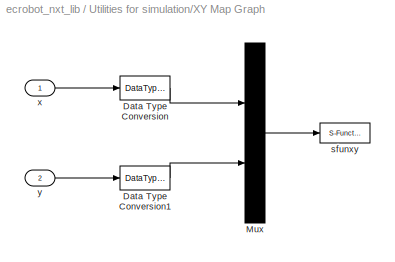
BLOCK [SubSystem] Utilities for simulation/XY Map Graph
  CopyFcn = sfunxymap2([],[],[],'CopyBlock')
  DeleteFcn = sfunxymap2([],[],[],'DeleteBlock')
  FunctionWithSeparateData = off
  LoadFcn = sfunxymap2([],[],[],'LoadBlock')
  MaskCallbackString = ||||
  MaskDescription = Plots second input (Y) against first input (X) at each time step to  create an X-Y plot. Ignores data outside the ranges specified by x-min, x-max, y-min, y-max. bit map file (with '.bmp' extention) image is also plotted in the scope.
  MaskDisplay = plot([.05 .95 .95 .05 .05],[.45 .45 .95 .95 .45], 0.5+cos(0:0.1:2*pi)*0.3,0.7+sin(0:0.1:2*pi)*0.2)
  MaskEnableString = on,on,on,on,on
  MaskHelp = This block can be used to explore limit cycles. Look at the m-file sfunxymap.m to see how it works.
  MaskHideContents = off
  MaskIconFrame = on
  MaskIconOpaque = on
  MaskIconRotate = none
  MaskIconUnits = normalized
  MaskPromptString = x-min:|x-max:|y-min:|y-max:|track map:
  MaskSelfModifiable = on
  MaskStyleString = edit,edit,edit,edit,edit
  MaskTabNameString = ,,,,
  MaskToolTipString = on,on,on,on,on
  MaskTunableValueString = on,on,on,on,on
  MaskType = XYMAP scope.
  MaskValueString = 0|200|0|200|TRACK_MAP
  MaskVarAliasString = ,,,,
  MaskVariables = xmin=@1;xmax=@2;ymin=@3;ymax=@4;map=@5;
  MaskVisibilityString = on,on,on,on,on
  MinAlgLoopOccurrences = off
  NameChangeFcn = sfunxymap2([],[],[],'NameChange')
  Ports = [2]
  RTWSystemCode = Auto
  SimViewingDevice = on
  StartFcn = sfunxymap2([],[],[],'Start')
  StopFcn = sfunxymap2([],[],[],'Stop')
  TreatAsAtomicUnit = on
BLOCK [DataTypeConversion] Utilities for simulation/XY Map Graph/Data Type Conversion
  OutDataTypeMode = double
  RndMeth = Floor
  SaturateOnIntegerOverflow = off
BLOCK [DataTypeConversion] Utilities for simulation/XY Map Graph/Data Type Conversion1
  OutDataTypeMode = double
  RndMeth = Floor
  SaturateOnIntegerOverflow = off
BLOCK [Mux] Utilities for simulation/XY Map Graph/Mux
  Inputs = 2
  Ports = [2, 1]
BLOCK [S-Function] Utilities for simulation/XY Map Graph/sfunxy
  FunctionName = sfunxymap2
  Parameters = [xmin xmax ymin ymax], map
  Ports = [1]
BLOCK [Inport] Utilities for simulation/XY Map Graph/x
  IconDisplay = Port number
BLOCK [Inport] Utilities for simulation/XY Map Graph/y
  IconDisplay = Port number
  Port = 2
ANNOTATION (root): Disclaimer:\nLEGO(R) is a trademark of the LEGO Group of companies which does not sponsor, authorize or endorse this demo.\nLEGO(R) , Mindstorms(R) are registered trademarks of The LEGO Group.
LINE Acceleration Sensor\nInterface/In1:1 -> Acceleration Sensor\nInterface/Saturation:1
LINE Acceleration Sensor\nInterface/Saturation:1 -> Acceleration Sensor\nInterface/S-Function:1
LINE Battery Voltage\nInterface/In1:1 -> Battery Voltage\nInterface/Saturation:1
LINE Battery Voltage\nInterface/Saturation:1 -> Battery Voltage\nInterface/Data Store\nWrite:1
LINE Battery Voltage\nRead/Data Store\nRead:1 -> Battery Voltage\nRead/Out1:1
LINE Bluetooth Rx\nInterface/In1:1 -> Bluetooth Rx\nInterface/Saturation:1
LINE Bluetooth Rx\nInterface/Saturation:1 -> Bluetooth Rx\nInterface/S-Function:1
LINE Bluetooth Tx\nInterface/S-Function:1 -> Bluetooth Tx\nInterface/Saturation:1
LINE Bluetooth Tx\nInterface/Saturation:1 -> Bluetooth Tx\nInterface/Out1:1
LINE Color Sensor\nInterface/In1:1 -> Color Sensor\nInterface/Saturation:1
LINE Color Sensor\nInterface/Saturation:1 -> Color Sensor\nInterface/S-Function:1
LINE Compass Sensor\nInterface/In1:1 -> Compass Sensor\nInterface/Saturation:1
LINE Compass Sensor\nInterface/Saturation:1 -> Compass Sensor\nInterface/Data Store\nWrite:1
LINE Compass Sensor\nRead/Data Store\nRead:1 -> Compass Sensor\nRead/Out1:1
LINE Enter Button\nInterface/In1:1 -> Enter Button\nInterface/Saturation:1
LINE Enter Button\nInterface/Saturation:1 -> Enter Button\nInterface/Data Store\nWrite:1
LINE Enter Button\nRead/Data Store\nRead:1 -> Enter Button\nRead/Out1:1
LINE Gyro Sensor\nInterface/In1:1 -> Gyro Sensor\nInterface/Saturation:1
LINE Gyro Sensor\nInterface/Saturation:1 -> Gyro Sensor\nInterface/Data Store\nWrite:1
LINE Gyro Sensor\nRead/Data Store\nRead:1 -> Gyro Sensor\nRead/Out1:1
LINE IR Seeker\nInterface/In1:1 -> IR Seeker\nInterface/Saturation:1
LINE IR Seeker\nInterface/Saturation:1 -> IR Seeker\nInterface/S-Function:1
LINE Light Sensor\nInterface/In1:1 -> Light Sensor\nInterface/Saturation:1
LINE Light Sensor\nInterface/Saturation:1 -> Light Sensor\nInterface/Data Store\nWrite:1
LINE Light Sensor\nRead/Data Store\nRead:1 -> Light Sensor\nRead/Out1:1
LINE Revolution Sensor\nInterface/In1:1 -> Revolution Sensor\nInterface/Saturation:1
LINE Revolution Sensor\nInterface/Saturation:1 -> Revolution Sensor\nInterface/Data Store\nWrite:1
LINE Revolution Sensor\nRead/Data Store\nRead:1 -> Revolution Sensor\nRead/Out1:1
LINE Run Button\nInterface/In1:1 -> Run Button\nInterface/Saturation:1
LINE Run Button\nInterface/Saturation:1 -> Run Button\nInterface/Data Store\nWrite:1
LINE Run Button\nRead/Data Store\nRead:1 -> Run Button\nRead/Out1:1
LINE Servo Motor\nInterface/Data Store\nRead:1 -> Servo Motor\nInterface/Saturation:1
LINE Servo Motor\nInterface/Saturation:1 -> Servo Motor\nInterface/Out1:1
LINE Servo Motor\nWrite/In1:1 -> Servo Motor\nWrite/Data Store\nWrite:1
LINE Sound Sensor\nInterface/In1:1 -> Sound Sensor\nInterface/Saturation:1
LINE Sound Sensor\nInterface/Saturation:1 -> Sound Sensor\nInterface/Data Store\nWrite:1
LINE Sound Sensor\nRead/Data Store\nRead:1 -> Sound Sensor\nRead/Out1:1
LINE Sound Tone \nInterface/S-Function:1 -> Sound Tone \nInterface/Saturation:1
LINE Sound Tone \nInterface/S-Function:2 -> Sound Tone \nInterface/Saturation1:1
LINE Sound Tone \nInterface/Saturation1:1 -> Sound Tone \nInterface/Out2:1
LINE Sound Tone \nInterface/Saturation:1 -> Sound Tone \nInterface/Out1:1
LINE Sound Vol Tone \nInterface/S-Function:1 -> Sound Vol Tone \nInterface/Saturation:1
LINE Sound Vol Tone \nInterface/S-Function:2 -> Sound Vol Tone \nInterface/Saturation1:1
LINE Sound Vol Tone \nInterface/S-Function:3 -> Sound Vol Tone \nInterface/Saturation2:1
LINE Sound Vol Tone \nInterface/Saturation1:1 -> Sound Vol Tone \nInterface/Out2:1
LINE Sound Vol Tone \nInterface/Saturation2:1 -> Sound Vol Tone \nInterface/Out3:1
LINE Sound Vol Tone \nInterface/Saturation:1 -> Sound Vol Tone \nInterface/Out1:1
LINE Sound WAV\nInterface/Data Store\nRead:1 -> Sound WAV\nInterface/Saturation:1
LINE Sound WAV\nInterface/Saturation:1 -> Sound WAV\nInterface/Out1:1
LINE Sound WAV\nWrite/In1:1 -> Sound WAV\nWrite/Data Store\nWrite:1
LINE System Clock\nInterface/Constant:1 -> System Clock\nInterface/Sum:1
LINE System Clock\nInterface/Saturation:1 -> System Clock\nInterface/Data Store\nWrite:1
LINE System Clock\nInterface/Sum:1 -> System Clock\nInterface/Unit Delay:1
NET System Clock\nInterface/Unit Delay:1 -> System Clock\nInterface/Saturation:1, System Clock\nInterface/Sum:2
LINE System Clock\nRead/Data Store\nRead:1 -> System Clock\nRead/Out1:1
LINE Touch Sensor\nInterface/In1:1 -> Touch Sensor\nInterface/Saturation:1
LINE Touch Sensor\nInterface/Saturation:1 -> Touch Sensor\nInterface/Data Store\nWrite:1
LINE Touch Sensor\nRead/Data Store\nRead:1 -> Touch Sensor\nRead/Out1:1
LINE USB Rx\nInterface/In1:1 -> USB Rx\nInterface/Saturation:1
LINE USB Rx\nInterface/Saturation:1 -> USB Rx\nInterface/S-Function:1
LINE USB Tx\nInterface/S-Function:1 -> USB Tx\nInterface/Saturation:1
LINE USB Tx\nInterface/Saturation:1 -> USB Tx\nInterface/Out1:1
LINE Ultrasonic Sensor\nInterface/In1:1 -> Ultrasonic Sensor\nInterface/Saturation:1
LINE Ultrasonic Sensor\nInterface/Saturation:1 -> Ultrasonic Sensor\nInterface/Data Store\nWrite:1
LINE Ultrasonic Sensor\nRead/Data Store\nRead:1 -> Ultrasonic Sensor\nRead/Out1:1
LINE Utilities for simulation/XY Map Graph/Data Type Conversion1:1 -> Utilities for simulation/XY Map Graph/Mux:2
LINE Utilities for simulation/XY Map Graph/Data Type Conversion:1 -> Utilities for simulation/XY Map Graph/Mux:1
LINE Utilities for simulation/XY Map Graph/Mux:1 -> Utilities for simulation/XY Map Graph/sfunxy:1
LINE Utilities for simulation/XY Map Graph/x:1 -> Utilities for simulation/XY Map Graph/Data Type Conversion:1
LINE Utilities for simulation/XY Map Graph/y:1 -> Utilities for simulation/XY Map Graph/Data Type Conversion1:1
note: NET lines group one-source signal fan-out (src -> all destinations, sorted); 1:1 wires keep LINE
